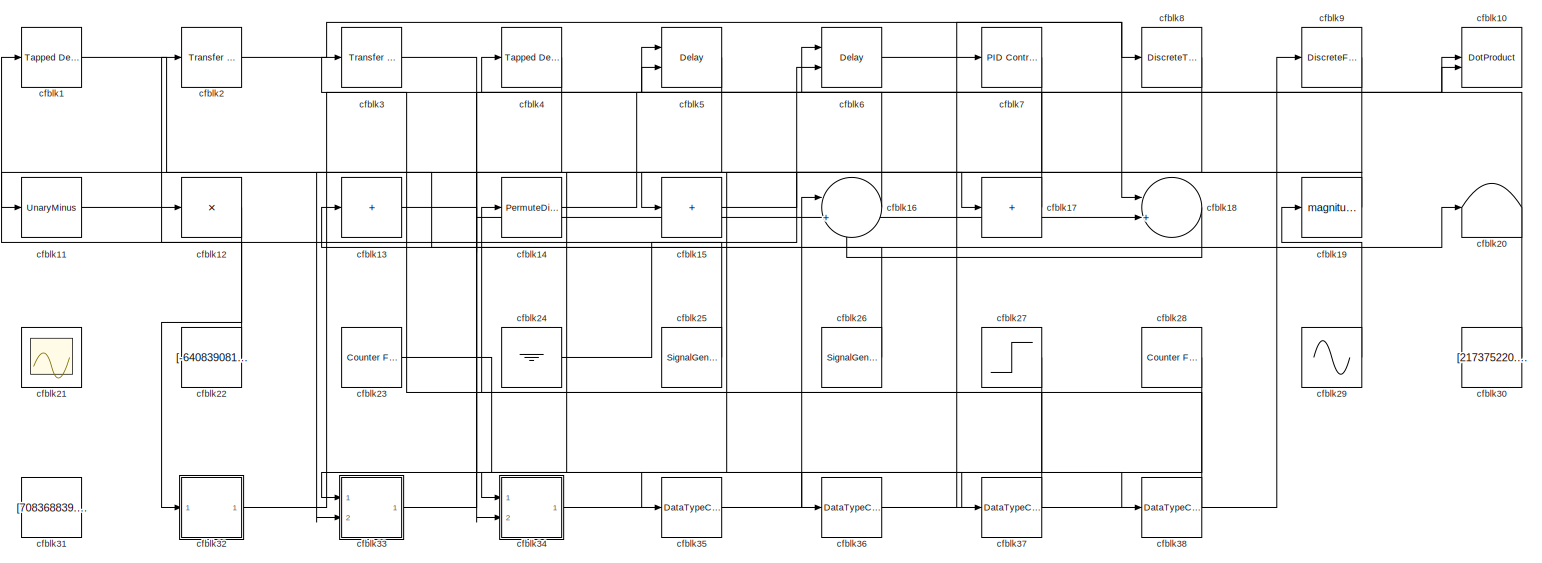
[diagram: root canvas - part 1/1, most of the canvas]
MODEL slx_19f92fa20dd0
KIND model
CONFIG AbsTol = auto
CONFIG EnableMultiTasking = off
CONFIG FixedStep = auto
CONFIG MaxStep = auto
CONFIG MinStep = auto
CONFIG RelTol = 1e-3
CONFIG SampleTimeConstraint = Unconstrained
CONFIG SolverName = VariableStepAuto
CONFIG StartTime = 0.0
CONFIG StopTime = 10.0
BLOCK [Reference] cfblk1  REF=simulink/Discrete/Tapped Delay
  Ports = [1, 1]
  SourceBlock = simulink/Discrete/Tapped Delay
  SourceProductBaseCode = SL
  SourceType = Tapped Delay Line
BLOCK [DotProduct] cfblk10
  OutDataTypeStr = Inherit: Inherit via internal rule
BLOCK [UnaryMinus] cfblk11
BLOCK [Product] cfblk12
  Inputs = *
  Ports = [1, 1]
BLOCK [Sum] cfblk13
  IconShape = rectangular
  Inputs = +
  Ports = [1, 1]
BLOCK [PermuteDimensions] cfblk14
BLOCK [Sum] cfblk15
  IconShape = rectangular
  Inputs = +
  Ports = [1, 1]
BLOCK [Sum] cfblk16
  Inputs = |++
  Ports = [2, 1]
BLOCK [Sum] cfblk17
  IconShape = rectangular
  Inputs = +
  Ports = [1, 1]
BLOCK [Sum] cfblk18
  Inputs = |++
  Ports = [2, 1]
BLOCK [Math] cfblk19
  Operator = magnitude^2
  Ports = [1, 1]
BLOCK [Reference] cfblk2  REF=simulink/Discrete/Transfer Fcn
First Order
  Ports = [1, 1]
  SourceBlock = simulink/Discrete/Transfer Fcn\nFirst Order
  SourceProductBaseCode = SL
  SourceType = First Order Transfer Fcn
BLOCK [Terminator] cfblk20
BLOCK [Scope] cfblk21
  Floating = on
  NumInputPorts = 1
  Ports = []
BLOCK [Constant] cfblk22
  SampleTime = 1
  Value = [-640839081.910477]
BLOCK [Reference] cfblk23  REF=simulink/Sources/Counter
Free-Running
  Ports = [0, 1]
  SourceBlock = simulink/Sources/Counter\nFree-Running
  SourceProductBaseCode = SL
  SourceType = Counter Free-Running
BLOCK [Ground] cfblk24
BLOCK [SignalGenerator] cfblk25
  Amplitude = [109230491.198578]
  Ports = [0, 1]
  WaveForm = sawtooth
BLOCK [SignalGenerator] cfblk26
  Amplitude = [577572685.866582]
  Ports = [0, 1]
BLOCK [Step] cfblk27
  After = [-51553592.084691]
  Before = [366964797.184170]
  SampleTime = 0
  Time = [26.000000]
BLOCK [Reference] cfblk28  REF=simulink/Sources/Counter
Free-Running
  Ports = [0, 1]
  SourceBlock = simulink/Sources/Counter\nFree-Running
  SourceProductBaseCode = SL
  SourceType = Counter Free-Running
BLOCK [Sin] cfblk29
  Amplitude = [27266409.032489]
  Bias = [398070011.647885]
  Ports = [0, 1]
  SampleTime = 0
BLOCK [Reference] cfblk3  REF=simulink/Discrete/Transfer Fcn
First Order
  Ports = [1, 1]
  SourceBlock = simulink/Discrete/Transfer Fcn\nFirst Order
  SourceProductBaseCode = SL
  SourceType = First Order Transfer Fcn
BLOCK [Constant] cfblk30
  SampleTime = 1
  Value = [217375220.453271]
BLOCK [Constant] cfblk31
  SampleTime = 1
  Value = [708368839.599419]
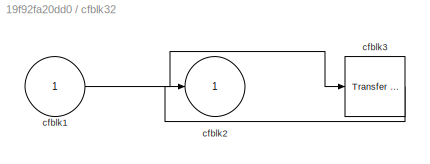
BLOCK [SubSystem] cfblk32
  Ports = [1, 1]
  RequestExecContextInheritance = off
BLOCK [Inport] cfblk32/cfblk1
BLOCK [Outport] cfblk32/cfblk2
BLOCK [Reference] cfblk32/cfblk3  REF=simulink/Discrete/Transfer Fcn
First Order
  Ports = [1, 1]
  SourceBlock = simulink/Discrete/Transfer Fcn\nFirst Order
  SourceProductBaseCode = SL
  SourceType = First Order Transfer Fcn
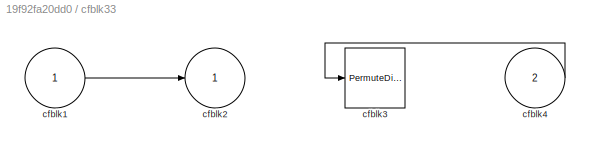
BLOCK [SubSystem] cfblk33
  Ports = [2, 1]
  RequestExecContextInheritance = off
BLOCK [Inport] cfblk33/cfblk1
BLOCK [Outport] cfblk33/cfblk2
BLOCK [PermuteDimensions] cfblk33/cfblk3
BLOCK [Inport] cfblk33/cfblk4
  Port = 2
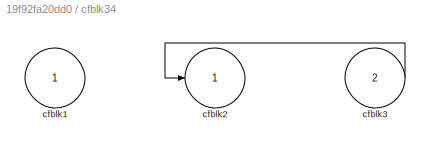
BLOCK [SubSystem] cfblk34
  Ports = [2, 1]
  RequestExecContextInheritance = off
BLOCK [Inport] cfblk34/cfblk1
BLOCK [Outport] cfblk34/cfblk2
BLOCK [Inport] cfblk34/cfblk3
  Port = 2
BLOCK [DataTypeConversion] cfblk35
  RndMeth = Floor
  SaturateOnIntegerOverflow = off
BLOCK [DataTypeConversion] cfblk36
  RndMeth = Floor
  SaturateOnIntegerOverflow = off
BLOCK [DataTypeConversion] cfblk37
  RndMeth = Floor
  SaturateOnIntegerOverflow = off
BLOCK [DataTypeConversion] cfblk38
  RndMeth = Floor
  SaturateOnIntegerOverflow = off
BLOCK [Reference] cfblk4  REF=simulink/Discrete/Tapped Delay
  Ports = [1, 1]
  SourceBlock = simulink/Discrete/Tapped Delay
  SourceProductBaseCode = SL
  SourceType = Tapped Delay Line
BLOCK [Delay] cfblk5
  DelayLengthSource = Input port
  InputPortMap = u0,p1
  Ports = [2, 1]
  SampleTime = 1
BLOCK [Delay] cfblk6
  DelayLengthSource = Input port
  InputPortMap = u0,p1
  Ports = [2, 1]
  SampleTime = 1
BLOCK [Reference] cfblk7  REF=slpidlib/PID Controller
  Ports = [1, 1]
  SourceBlock = slpidlib/PID Controller
  SourceProductBaseCode = SL
  SourceType = PID 1dof
BLOCK [DiscreteTransferFcn] cfblk8
  InputPortMap = u0
  Ports = [1, 1]
  SampleTime = 1
BLOCK [DiscreteFilter] cfblk9
  InputPortMap = u0
  Ports = [1, 1]
  SampleTime = 1
LINE cfblk11:1 -> cfblk12:1
LINE cfblk12:1 -> cfblk32:1
LINE cfblk13:1 -> cfblk18:2
LINE cfblk14:1 -> cfblk10:1
LINE cfblk15:1 -> cfblk17:1
LINE cfblk16:1 -> cfblk4:1
LINE cfblk17:1 -> cfblk5:1
LINE cfblk18:1 -> cfblk16:2
LINE cfblk19:1 -> cfblk11:1
LINE cfblk1:1 -> cfblk20:1
LINE cfblk22:1 -> cfblk1:1
LINE cfblk23:1 -> cfblk38:1
LINE cfblk24:1 -> cfblk6:2
LINE cfblk25:1 -> cfblk2:1
LINE cfblk26:1 -> cfblk13:1
LINE cfblk27:1 -> cfblk33:1
LINE cfblk28:1 -> cfblk36:1
LINE cfblk29:1 -> cfblk19:1
LINE cfblk2:1 -> cfblk18:1
LINE cfblk30:1 -> cfblk6:1
LINE cfblk32/cfblk1:1 -> cfblk32/cfblk3:1
LINE cfblk32/cfblk3:1 -> cfblk32/cfblk2:1
LINE cfblk32:1 -> cfblk5:2
LINE cfblk33/cfblk1:1 -> cfblk33/cfblk2:1
LINE cfblk33/cfblk4:1 -> cfblk33/cfblk3:1
LINE cfblk33:1 -> cfblk10:2
LINE cfblk34/cfblk3:1 -> cfblk34/cfblk2:1
LINE cfblk34:1 -> cfblk16:1
LINE cfblk35:1 -> cfblk7:1
LINE cfblk36:1 -> cfblk9:1
LINE cfblk37:1 -> cfblk14:1
LINE cfblk38:1 -> cfblk3:1
LINE cfblk3:1 -> cfblk37:1
LINE cfblk4:1 -> cfblk33:2
LINE cfblk5:1 -> cfblk34:1
LINE cfblk6:1 -> cfblk8:1
LINE cfblk7:1 -> cfblk15:1
LINE cfblk8:1 -> cfblk34:2
LINE cfblk9:1 -> cfblk35:1
